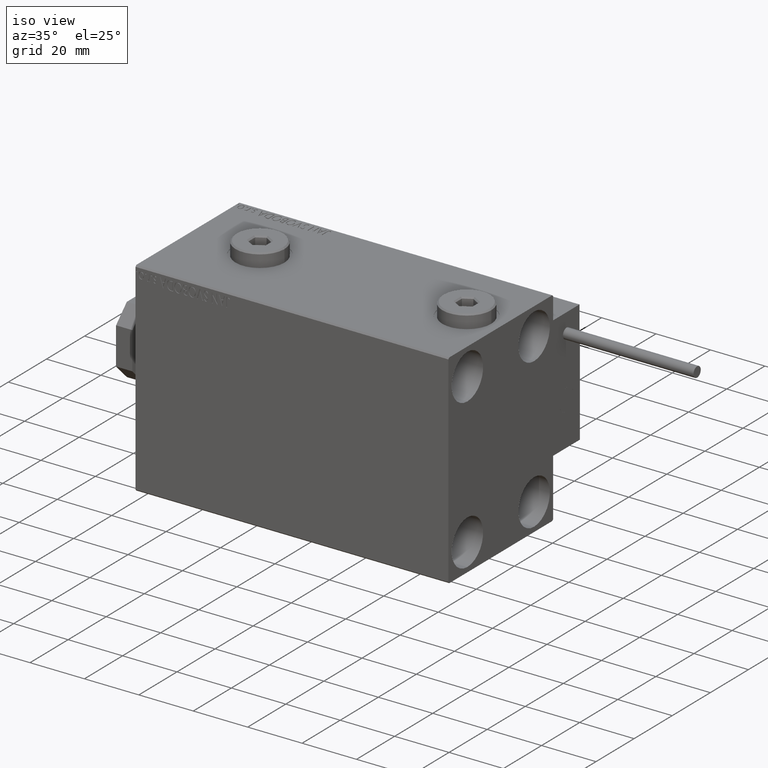
[diagram: clean part render]
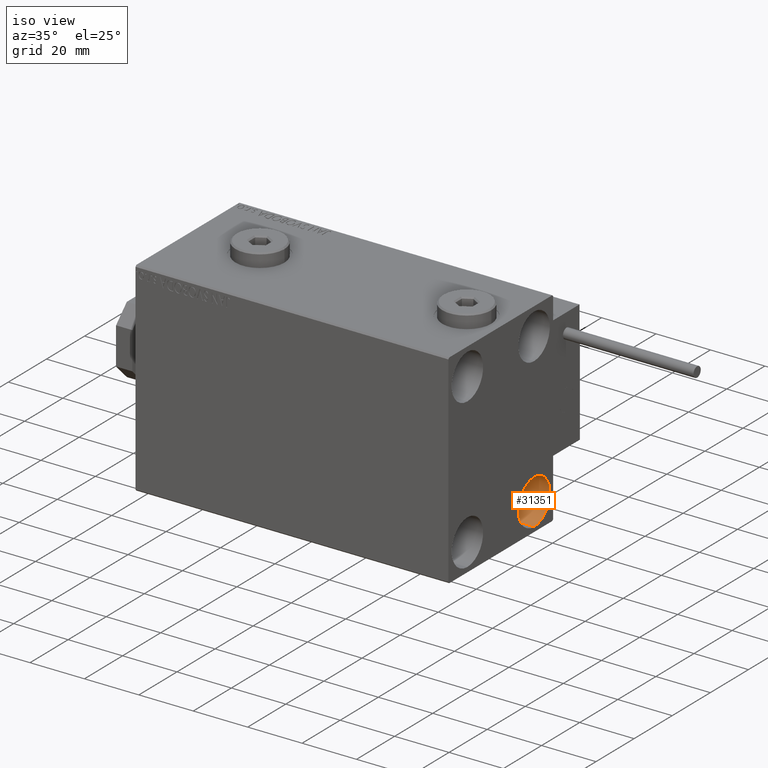
[diagram: same view with one face highlighted and labeled with its STEP entity id]
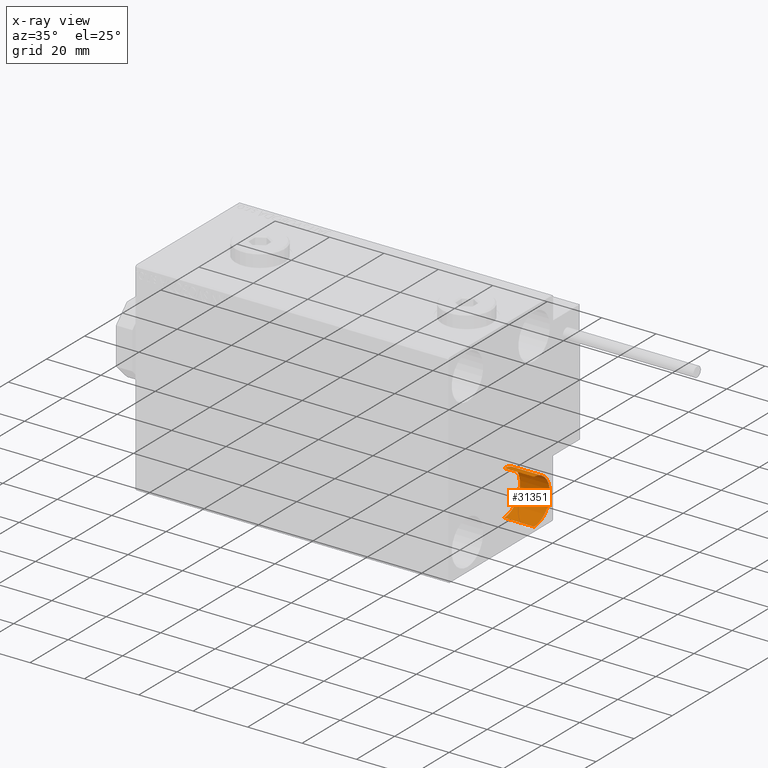
[diagram: x-ray of the same camera — body ghosted, the highlighted face saturated]
A machine part, iso view. The second image highlights one B-rep face of the part: STEP entity #31351.
The next image is the same camera in x-ray: the body ghosted, the highlighted face saturated — about 0% of this face is hidden behind the body in this view.
In plain terms, the highlighted cylindrical surface (edge-blend (fillet) strip) has radius 8.25 mm, axis along (1, 0, 0).
Its self-contained STEP definition (entity closure, byte-faithful):
#466 = CARTESIAN_POINT ( 'NONE',  ( 104.0000000000000142, 17.49999999999999645, -27.50000000000000355 ) ) ;
#1996 = VERTEX_POINT ( 'NONE', #19095 ) ;
#3872 = VECTOR ( 'NONE', #15112, 1000.000000000000000 ) ;
#4654 = DIRECTION ( 'NONE',  ( 1.000000000000000000, -0.000000000000000000, -0.000000000000000000 ) ) ;
#5324 = DIRECTION ( 'NONE',  ( 0.000000000000000000, 0.000000000000000000, 1.000000000000000000 ) ) ;
#6938 = ORIENTED_EDGE ( 'NONE', *, *, #48981, .T. ) ;
#10249 = DIRECTION ( 'NONE',  ( -1.000000000000000000, -0.000000000000000000, -0.000000000000000000 ) ) ;
#10352 = VERTEX_POINT ( 'NONE', #49617 ) ;
#11661 = AXIS2_PLACEMENT_3D ( 'NONE', #40778, #49585, #17075 ) ;
#13447 = AXIS2_PLACEMENT_3D ( 'NONE', #466, #4654, #43744 ) ;
#13486 = VECTOR ( 'NONE', #17231, 1000.000000000000000 ) ;
#15112 = DIRECTION ( 'NONE',  ( 1.000000000000000000, -0.000000000000000000, -0.000000000000000000 ) ) ;
#15902 = EDGE_CURVE ( 'NONE', #10352, #32057, #29666, .T. ) ;
#16097 = ORIENTED_EDGE ( 'NONE', *, *, #15902, .F. ) ;
#16883 = EDGE_LOOP ( 'NONE', ( #23839, #42436, #6938, #16097 ) ) ;
#17075 = DIRECTION ( 'NONE',  ( 0.000000000000000000, 0.000000000000000000, 1.000000000000000000 ) ) ;
#17231 = DIRECTION ( 'NONE',  ( 1.000000000000000000, -0.000000000000000000, -0.000000000000000000 ) ) ;
#19095 = CARTESIAN_POINT ( 'NONE',  ( 104.0000000000000142, 17.49999999999999645, -19.25000000000000355 ) ) ;
#23453 = CARTESIAN_POINT ( 'NONE',  ( 104.0000000000000142, 17.49999999999999645, -35.75000000000000711 ) ) ;
#23839 = ORIENTED_EDGE ( 'NONE', *, *, #32051, .F. ) ;
#27944 = EDGE_CURVE ( 'NONE', #1996, #40816, #34125, .T. ) ;
#28389 = FACE_OUTER_BOUND ( 'NONE', #16883, .T. ) ;
#29666 = CIRCLE ( 'NONE', #41362, 8.250000000000000000 ) ;
#31351 = ADVANCED_FACE ( 'NONE', ( #28389 ), #47638, .F. ) ;
#32051 = EDGE_CURVE ( 'NONE', #1996, #10352, #36529, .T. ) ;
#32057 = VERTEX_POINT ( 'NONE', #40948 ) ;
#34125 = CIRCLE ( 'NONE', #11661, 8.250000000000000000 ) ;
#36529 = LINE ( 'NONE', #37028, #13486 ) ;
#37028 = CARTESIAN_POINT ( 'NONE',  ( 104.0000000000000142, 17.49999999999999645, -19.25000000000000355 ) ) ;
#40778 = CARTESIAN_POINT ( 'NONE',  ( 104.0000000000000142, 17.49999999999999645, -27.50000000000000355 ) ) ;
#40816 = VERTEX_POINT ( 'NONE', #42911 ) ;
#40948 = CARTESIAN_POINT ( 'NONE',  ( 115.0000000000000000, 17.49999999999999645, -35.75000000000000711 ) ) ;
#41362 = AXIS2_PLACEMENT_3D ( 'NONE', #49598, #10249, #5324 ) ;
#42436 = ORIENTED_EDGE ( 'NONE', *, *, #27944, .T. ) ;
#42911 = CARTESIAN_POINT ( 'NONE',  ( 104.0000000000000142, 17.49999999999999645, -35.75000000000000711 ) ) ;
#43744 = DIRECTION ( 'NONE',  ( 0.000000000000000000, 0.000000000000000000, -1.000000000000000000 ) ) ;
#45903 = LINE ( 'NONE', #23453, #3872 ) ;
#47638 = CYLINDRICAL_SURFACE ( 'NONE', #13447, 8.250000000000000000 ) ;
#48981 = EDGE_CURVE ( 'NONE', #40816, #32057, #45903, .T. ) ;
#49585 = DIRECTION ( 'NONE',  ( -1.000000000000000000, -0.000000000000000000, -0.000000000000000000 ) ) ;
#49598 = CARTESIAN_POINT ( 'NONE',  ( 115.0000000000000000, 17.49999999999999645, -27.50000000000000355 ) ) ;
#49617 = CARTESIAN_POINT ( 'NONE',  ( 115.0000000000000000, 17.49999999999999645, -19.25000000000000355 ) ) ;